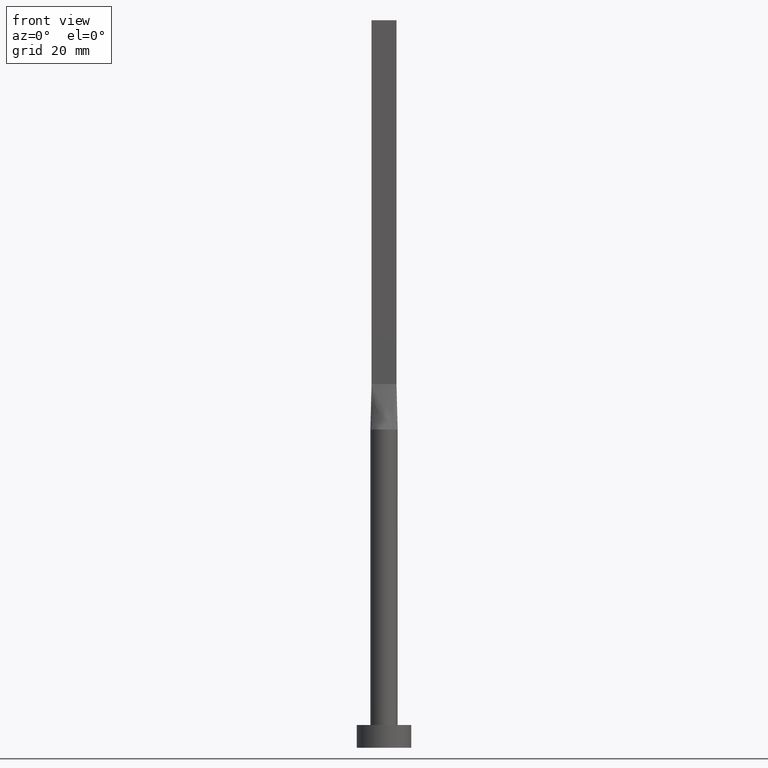
[diagram: clean part render]
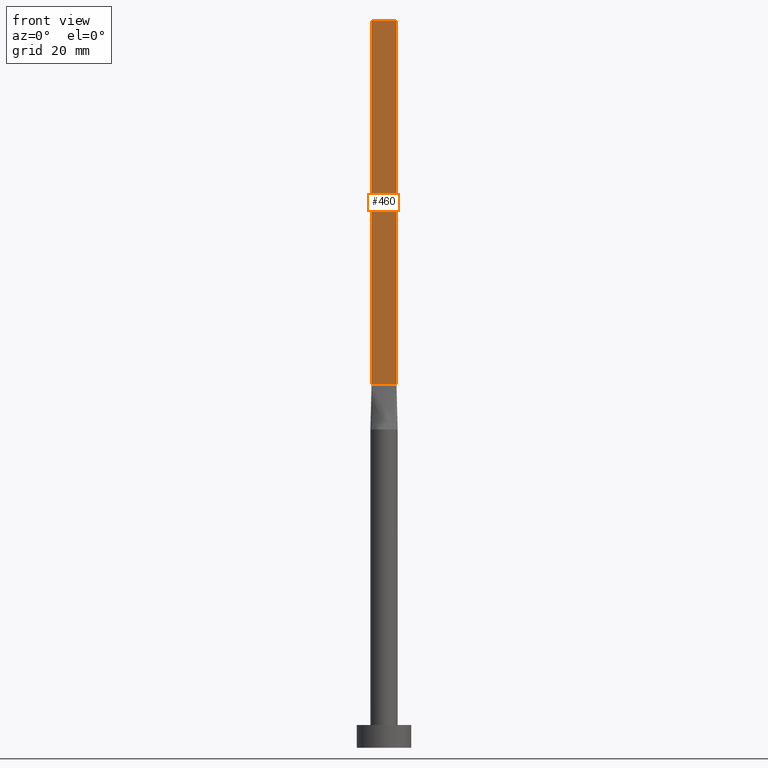
[diagram: same view with one face highlighted and labeled with its STEP entity id]
A machine part, front view. The second image highlights one B-rep face of the part: STEP entity #460.
In plain terms, the highlighted planar face has unit normal (0, 1, -0).
Its self-contained STEP definition (entity closure, byte-faithful):
#1 = DIRECTION ( 'NONE',  ( -1.000000000000000000, 5.913830031739115543E-17, 0.000000000000000000 ) ) ;
#8 = ORIENTED_EDGE ( 'NONE', *, *, #384, .F. ) ;
#18 = DIRECTION ( 'NONE',  ( 1.000000000000000000, -5.913830031739115543E-17, 0.000000000000000000 ) ) ;
#29 = DIRECTION ( 'NONE',  ( 1.000000000000000000, -5.913830031739115543E-17, 0.000000000000000000 ) ) ;
#54 = EDGE_CURVE ( 'NONE', #456, #191, #199, .T. ) ;
#93 = CARTESIAN_POINT ( 'NONE',  ( -2.750000000000000000, -0.4999999999999994449, 160.0000000000000000 ) ) ;
#104 = CARTESIAN_POINT ( 'NONE',  ( 2.750000000000000000, -0.4999999999999997780, 160.0000000000000000 ) ) ;
#134 = AXIS2_PLACEMENT_3D ( 'NONE', #170, #353, #1 ) ;
#138 = DIRECTION ( 'NONE',  ( -0.000000000000000000, -0.000000000000000000, -1.000000000000000000 ) ) ;
#162 = VECTOR ( 'NONE', #18, 1000.000000000000000 ) ;
#170 = CARTESIAN_POINT ( 'NONE',  ( -2.750000000000000000, -0.4999999999999994449, 160.0000000000000000 ) ) ;
#191 = VERTEX_POINT ( 'NONE', #349 ) ;
#194 = VERTEX_POINT ( 'NONE', #200 ) ;
#195 = ORIENTED_EDGE ( 'NONE', *, *, #266, .T. ) ;
#199 = LINE ( 'NONE', #354, #329 ) ;
#200 = CARTESIAN_POINT ( 'NONE',  ( 2.750000000000000000, -0.4999999999999997780, 160.0000000000000000 ) ) ;
#249 = EDGE_LOOP ( 'NONE', ( #195, #483, #8, #447 ) ) ;
#266 = EDGE_CURVE ( 'NONE', #191, #465, #427, .T. ) ;
#306 = LINE ( 'NONE', #104, #413 ) ;
#329 = VECTOR ( 'NONE', #138, 1000.000000000000000 ) ;
#349 = CARTESIAN_POINT ( 'NONE',  ( -2.750000000000000000, -0.4999999999999994449, 80.00000000000000000 ) ) ;
#353 = DIRECTION ( 'NONE',  ( 5.913830031739115543E-17, 1.000000000000000000, -0.000000000000000000 ) ) ;
#354 = CARTESIAN_POINT ( 'NONE',  ( -2.750000000000000000, -0.4999999999999994449, 160.0000000000000000 ) ) ;
#357 = EDGE_CURVE ( 'NONE', #194, #465, #306, .T. ) ;
#380 = VECTOR ( 'NONE', #29, 1000.000000000000000 ) ;
#384 = EDGE_CURVE ( 'NONE', #456, #194, #422, .T. ) ;
#402 = PLANE ( 'NONE',  #134 ) ;
#413 = VECTOR ( 'NONE', #452, 1000.000000000000000 ) ;
#422 = LINE ( 'NONE', #516, #162 ) ;
#427 = LINE ( 'NONE', #430, #380 ) ;
#430 = CARTESIAN_POINT ( 'NONE',  ( -2.750000000000000000, -0.4999999999999994449, 80.00000000000000000 ) ) ;
#447 = ORIENTED_EDGE ( 'NONE', *, *, #54, .T. ) ;
#452 = DIRECTION ( 'NONE',  ( -0.000000000000000000, -0.000000000000000000, -1.000000000000000000 ) ) ;
#456 = VERTEX_POINT ( 'NONE', #93 ) ;
#460 = ADVANCED_FACE ( 'NONE', ( #575 ), #402, .F. ) ;
#465 = VERTEX_POINT ( 'NONE', #532 ) ;
#483 = ORIENTED_EDGE ( 'NONE', *, *, #357, .F. ) ;
#516 = CARTESIAN_POINT ( 'NONE',  ( -2.750000000000000000, -0.4999999999999994449, 160.0000000000000000 ) ) ;
#532 = CARTESIAN_POINT ( 'NONE',  ( 2.750000000000000000, -0.4999999999999997780, 80.00000000000000000 ) ) ;
#575 = FACE_OUTER_BOUND ( 'NONE', #249, .T. ) ;